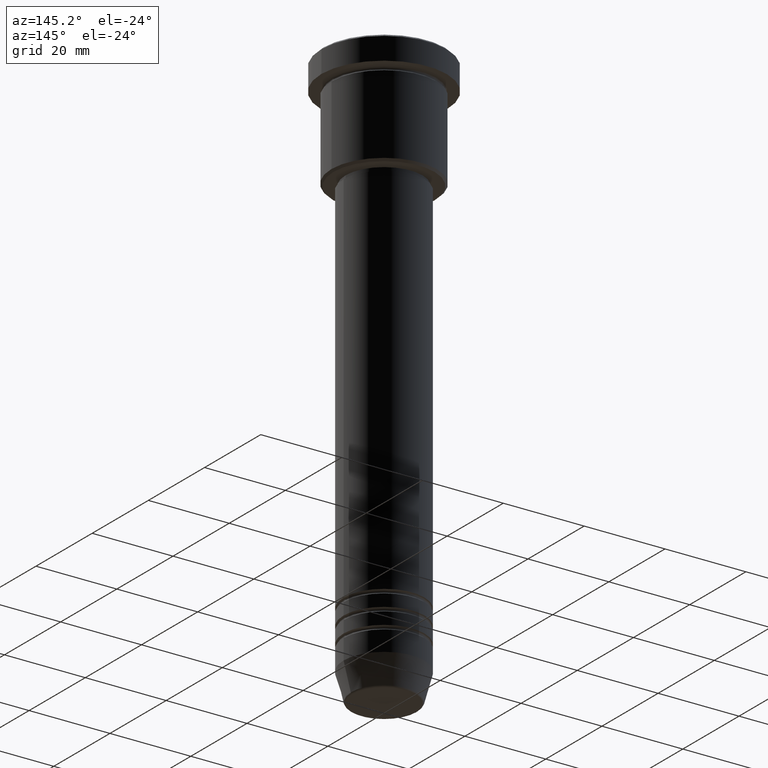
[diagram: clean part render]
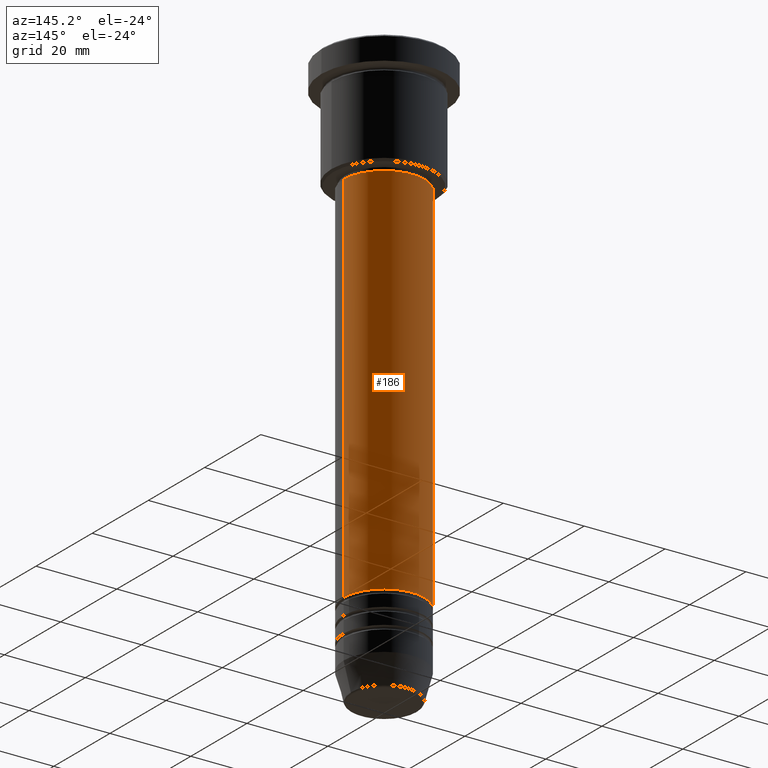
[diagram: same view with one face highlighted and labeled with its STEP entity id]
A machine part, auxiliary view. The second image highlights one B-rep face of the part: STEP entity #186.
In plain terms, the highlighted cylindrical surface (partial cylindrical patch) has radius 10 mm, axis along (-0, -0, 1).
Its self-contained STEP definition (entity closure, byte-faithful):
#6 = CIRCLE ( 'NONE', #196, 9.999999999999998224 ) ;
#15 = EDGE_LOOP ( 'NONE', ( #433, #583, #538, #504 ) ) ;
#34 = VERTEX_POINT ( 'NONE', #519 ) ;
#114 = CARTESIAN_POINT ( 'NONE',  ( -10.00000000000000178, 1.224646799147353454E-15, -120.9999999999999005 ) ) ;
#144 = AXIS2_PLACEMENT_3D ( 'NONE', #745, #732, #654 ) ;
#185 = FACE_OUTER_BOUND ( 'NONE', #15, .T. ) ;
#186 = ADVANCED_FACE ( 'NONE', ( #185 ), #1110, .T. ) ;
#196 = AXIS2_PLACEMENT_3D ( 'NONE', #324, #575, #763 ) ;
#228 = VERTEX_POINT ( 'NONE', #1012 ) ;
#273 = CARTESIAN_POINT ( 'NONE',  ( 0.000000000000000000, 0.000000000000000000, -120.9999999999999005 ) ) ;
#298 = EDGE_CURVE ( 'NONE', #940, #884, #563, .T. ) ;
#324 = CARTESIAN_POINT ( 'NONE',  ( 0.000000000000000000, 0.000000000000000000, -27.99999999999998934 ) ) ;
#350 = EDGE_CURVE ( 'NONE', #34, #228, #6, .T. ) ;
#355 = DIRECTION ( 'NONE',  ( -0.000000000000000000, -0.000000000000000000, 1.000000000000000000 ) ) ;
#433 = ORIENTED_EDGE ( 'NONE', *, *, #298, .T. ) ;
#476 = EDGE_CURVE ( 'NONE', #884, #228, #994, .T. ) ;
#504 = ORIENTED_EDGE ( 'NONE', *, *, #734, .F. ) ;
#519 = CARTESIAN_POINT ( 'NONE',  ( 9.999999999999998224, 0.000000000000000000, -27.99999999999998934 ) ) ;
#522 = CARTESIAN_POINT ( 'NONE',  ( 10.00000000000000178, 0.000000000000000000, -120.9999999999999005 ) ) ;
#538 = ORIENTED_EDGE ( 'NONE', *, *, #350, .F. ) ;
#546 = LINE ( 'NONE', #915, #720 ) ;
#563 = CIRCLE ( 'NONE', #853, 10.00000000000000178 ) ;
#575 = DIRECTION ( 'NONE',  ( -0.000000000000000000, -0.000000000000000000, 1.000000000000000000 ) ) ;
#583 = ORIENTED_EDGE ( 'NONE', *, *, #476, .T. ) ;
#636 = DIRECTION ( 'NONE',  ( -0.000000000000000000, -0.000000000000000000, 1.000000000000000000 ) ) ;
#654 = DIRECTION ( 'NONE',  ( 1.000000000000000000, 0.000000000000000000, 0.000000000000000000 ) ) ;
#720 = VECTOR ( 'NONE', #829, 1000.000000000000000 ) ;
#732 = DIRECTION ( 'NONE',  ( -0.000000000000000000, -0.000000000000000000, 1.000000000000000000 ) ) ;
#734 = EDGE_CURVE ( 'NONE', #940, #34, #546, .T. ) ;
#745 = CARTESIAN_POINT ( 'NONE',  ( 0.000000000000000000, 0.000000000000000000, 0.000000000000000000 ) ) ;
#763 = DIRECTION ( 'NONE',  ( 1.000000000000000000, 0.000000000000000000, 0.000000000000000000 ) ) ;
#829 = DIRECTION ( 'NONE',  ( -0.000000000000000000, -0.000000000000000000, 1.000000000000000000 ) ) ;
#853 = AXIS2_PLACEMENT_3D ( 'NONE', #273, #636, #1004 ) ;
#884 = VERTEX_POINT ( 'NONE', #114 ) ;
#915 = CARTESIAN_POINT ( 'NONE',  ( 10.00000000000000000, 0.000000000000000000, 0.000000000000000000 ) ) ;
#940 = VERTEX_POINT ( 'NONE', #522 ) ;
#994 = LINE ( 'NONE', #1086, #1172 ) ;
#1004 = DIRECTION ( 'NONE',  ( 1.000000000000000000, 0.000000000000000000, 0.000000000000000000 ) ) ;
#1012 = CARTESIAN_POINT ( 'NONE',  ( -9.999999999999998224, 1.224646799147353256E-15, -27.99999999999998934 ) ) ;
#1086 = CARTESIAN_POINT ( 'NONE',  ( -10.00000000000000000, 1.224646799147353256E-15, 0.000000000000000000 ) ) ;
#1110 = CYLINDRICAL_SURFACE ( 'NONE', #144, 10.00000000000000000 ) ;
#1172 = VECTOR ( 'NONE', #355, 1000.000000000000000 ) ;